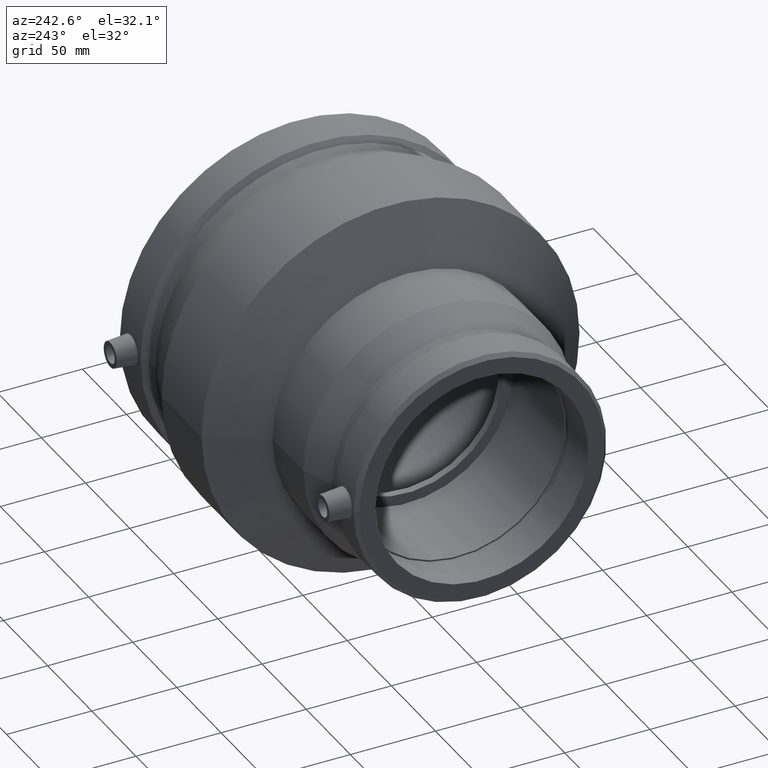
[diagram: clean part render]
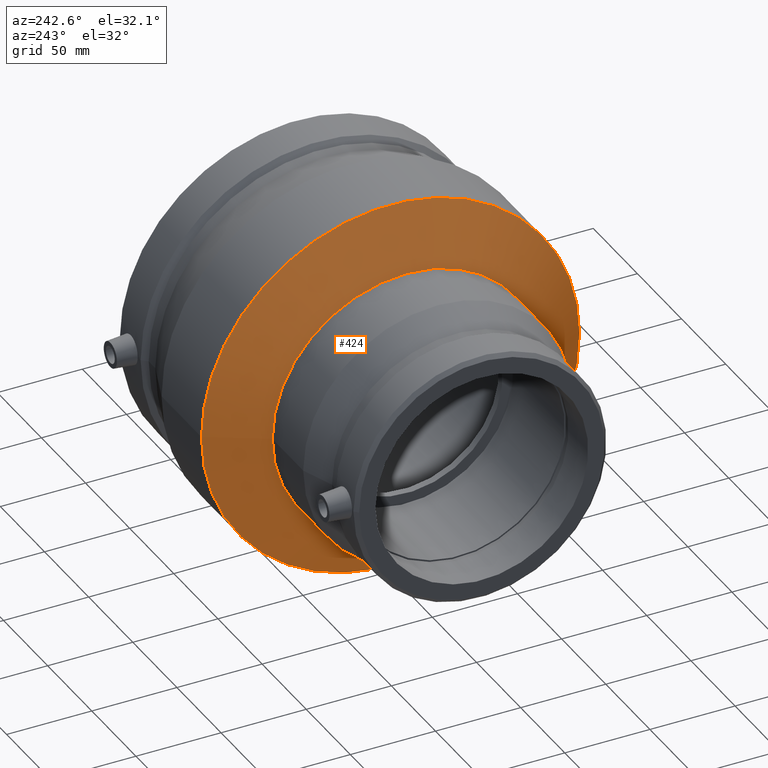
[diagram: same view with one face highlighted and labeled with its STEP entity id]
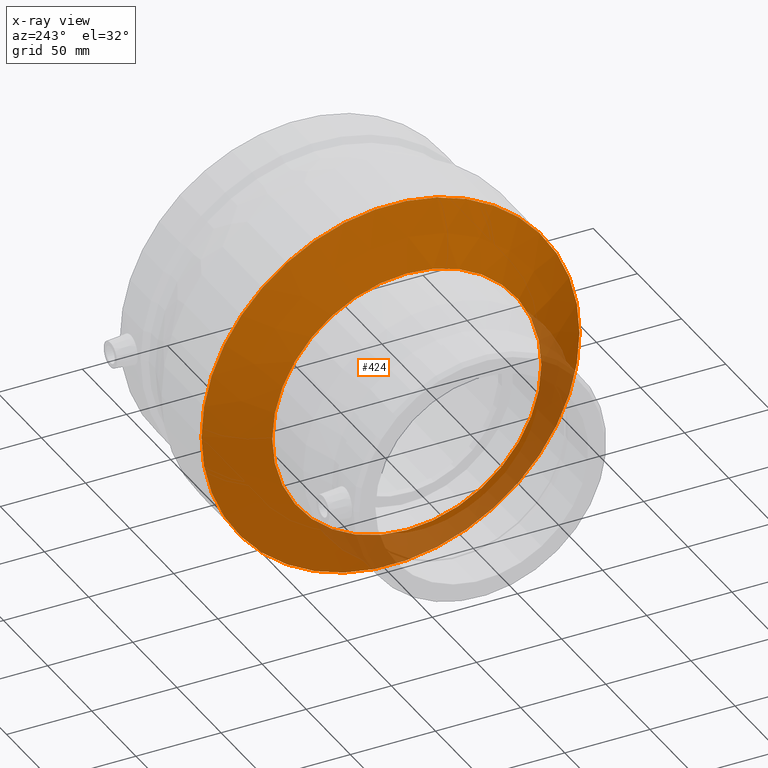
[diagram: x-ray of the same camera — body ghosted, the highlighted face saturated]
A machine part, auxiliary view. The second image highlights one B-rep face of the part: STEP entity #424.
The next image is the same camera in x-ray: the body ghosted, the highlighted face saturated — about 16% of this face is hidden behind the body in this view.
In plain terms, the highlighted conical surface has half-angle 60 deg.
Its self-contained STEP definition (entity closure, byte-faithful):
#22=CONICAL_SURFACE('',#483,95.,60.0000000000001);
#47=FACE_BOUND('',#160,.T.);
#102=FACE_OUTER_BOUND('',#159,.T.);
#159=EDGE_LOOP('',(#352));
#160=EDGE_LOOP('',(#353));
#217=CIRCLE('',#482,79.);
#218=CIRCLE('',#484,111.);
#256=VERTEX_POINT('',#800);
#257=VERTEX_POINT('',#803);
#295=EDGE_CURVE('',#256,#256,#217,.T.);
#296=EDGE_CURVE('',#257,#257,#218,.T.);
#352=ORIENTED_EDGE('',*,*,#295,.T.);
#353=ORIENTED_EDGE('',*,*,#296,.F.);
#424=ADVANCED_FACE('',(#102,#47),#22,.T.);
#482=AXIS2_PLACEMENT_3D('',#801,#596,#597);
#483=AXIS2_PLACEMENT_3D('',#802,#598,#599);
#484=AXIS2_PLACEMENT_3D('',#804,#600,#601);
#596=DIRECTION('center_axis',(1.,0.,0.));
#597=DIRECTION('ref_axis',(0.,0.,-1.));
#598=DIRECTION('center_axis',(1.,0.,0.));
#599=DIRECTION('ref_axis',(0.,1.,0.));
#600=DIRECTION('center_axis',(1.,0.,0.));
#601=DIRECTION('ref_axis',(0.,0.,-1.));
#800=CARTESIAN_POINT('',(-21.,79.,0.));
#801=CARTESIAN_POINT('Origin',(-21.,0.,0.));
#802=CARTESIAN_POINT('Origin',(-11.762395692966,0.,0.));
#803=CARTESIAN_POINT('',(-2.52479138593201,111.,0.));
#804=CARTESIAN_POINT('Origin',(-2.52479138593202,0.,0.));